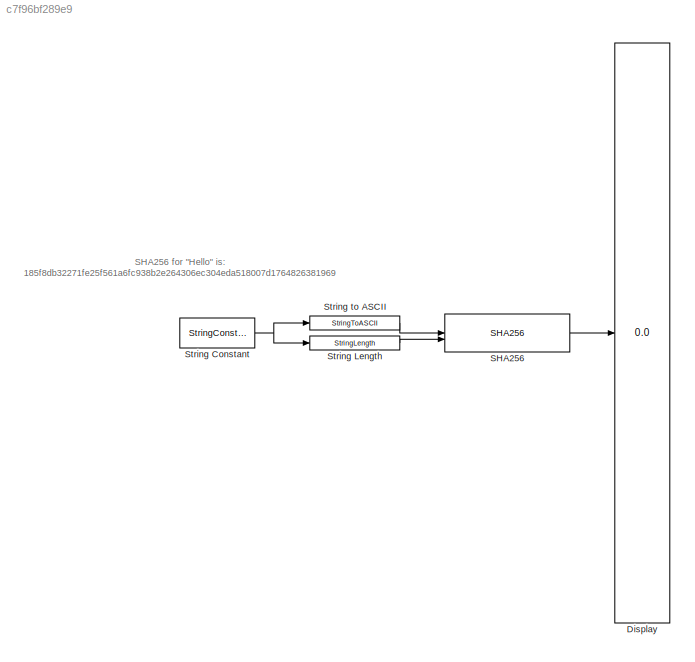
MODEL slx_c7f96bf289e9
KIND model
CONFIG AbsTol = auto
CONFIG EnableMultiTasking = off
CONFIG FixedStep = 0.01
CONFIG MaxStep = auto
CONFIG MinStep = auto
CONFIG RelTol = 1e-3
CONFIG SampleTimeConstraint = Unconstrained
CONFIG SolverName = FixedStepAuto
CONFIG StartTime = 0.0
CONFIG StopTime = 0
BLOCK [Display] Display
  Decimation = 1
  Format = hex (Stored Integer)
BLOCK [Reference] SHA256  REF=AVE_Library/Essential/SHA256
  SourceBlock = AVE_Library/Essential/SHA256
  SourceProductName = AVE - Autonomous Vehicle Control Toolbox
BLOCK [StringConstant] String Constant
  String = "Hello"
BLOCK [StringLength] String Length
BLOCK [StringToASCII] String to ASCII
ANNOTATION (root): SHA256 for "Hello" is: 185f8db32271fe25f561a6fc938b2e264306ec304eda518007d1764826381969
LINE SHA256:1 -> Display:1
NET String Constant:1 -> String Length:1, String to ASCII:1
LINE String Length:1 -> SHA256:2
LINE String to ASCII:1 -> SHA256:1
note: NET lines group one-source signal fan-out (src -> all destinations, sorted); 1:1 wires keep LINE
